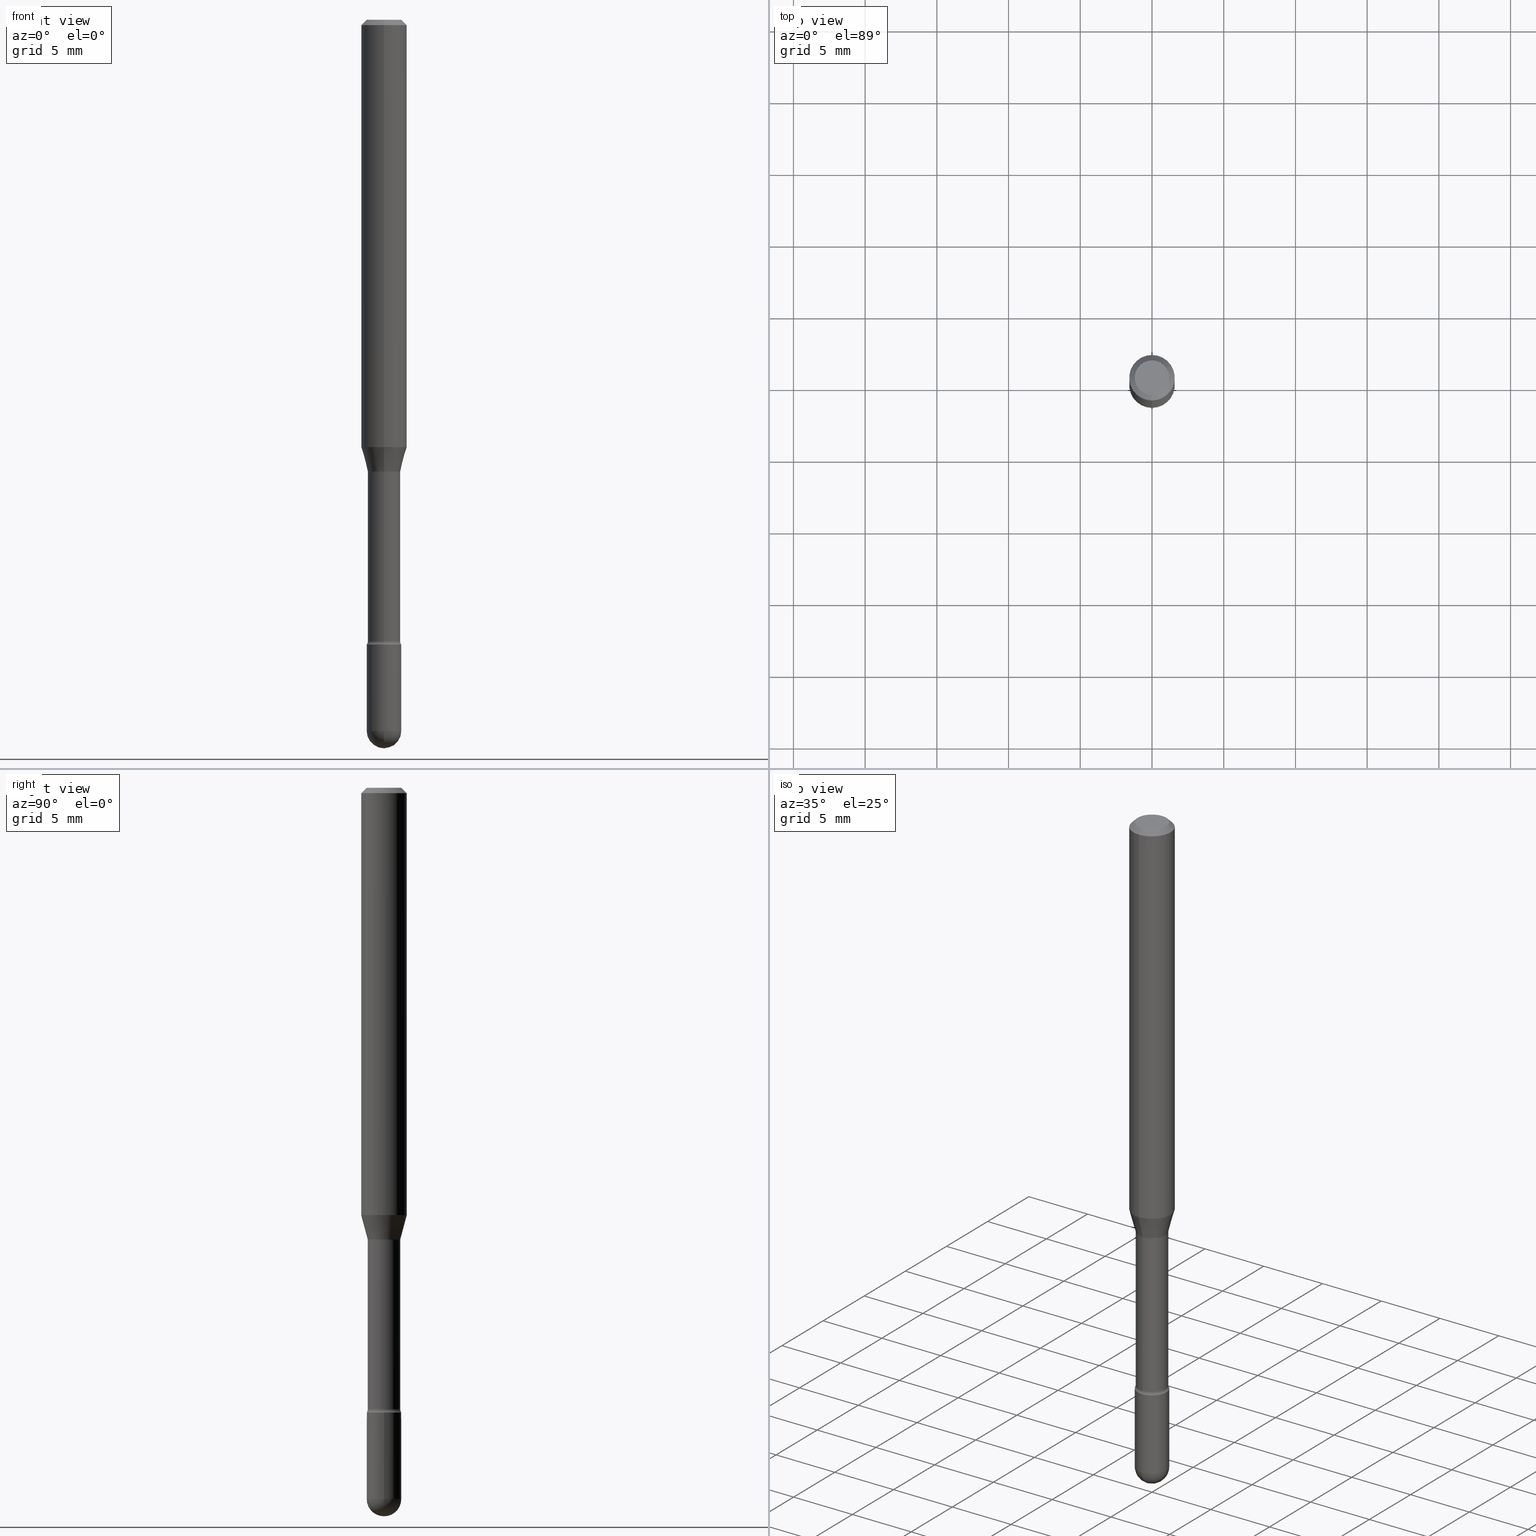
[diagram: canonical four-view strip — front | top / right | iso, engineering-drawing reading convention]
A machine part, canonical four-view strip (front | top / right | iso — engineering-drawing reading convention). The complete STEP part file that produces these views, byte-faithful:
ISO-10303-21;
HEADER;
FILE_DESCRIPTION (( 'STEP AP203' ),
    '1' );
FILE_NAME ('04560.STEP',
    '2024-04-09T21:55:51',
    ( '' ),
    ( '' ),
    'SwSTEP 2.0',
    'SolidWorks 2023',
    '' );
FILE_SCHEMA (( 'CONFIG_CONTROL_DESIGN' ));
ENDSEC;

DATA;
#1 = EDGE_CURVE ( 'NONE', #466, #296, #270, .T. ) ;
#2 = FACE_OUTER_BOUND ( 'NONE', #243, .T. ) ;
#3 = CARTESIAN_POINT ( 'NONE',  ( 4.364351673553919652E-16, 0.06249999999999995143, -0.01500000000000030129 ) ) ;
#4 = MECHANICAL_CONTEXT ( 'NONE', #531, 'mechanical' ) ;
#5 = AXIS2_PLACEMENT_3D ( 'NONE', #99, #60, #403 ) ;
#6 = LOCAL_TIME ( 17, 55, 51.00000000000000000, #93 ) ;
#7 = CARTESIAN_POINT ( 'NONE',  ( 3.027687393980253686E-29, -4.322818679396876931E-15, -1.238092501787273036 ) ) ;
#8 = ORIENTED_EDGE ( 'NONE', *, *, #321, .T. ) ;
#9 = CARTESIAN_POINT ( 'NONE',  ( 3.273825655015081526E-16, 0.04464999999999410413, -1.706203551853163081 ) ) ;
#10 = ORIENTED_EDGE ( 'NONE', *, *, #204, .T. ) ;
#11 = ORIENTED_EDGE ( 'NONE', *, *, #89, .T. ) ;
#12 = ADVANCED_FACE ( 'NONE', ( #2 ), #236, .T. ) ;
#13 = CC_DESIGN_PERSON_AND_ORGANIZATION_ASSIGNMENT ( #22, #233, ( #184 ) ) ;
#14 = ORIENTED_EDGE ( 'NONE', *, *, #446, .F. ) ;
#15 = AXIS2_PLACEMENT_3D ( 'NONE', #172, #38, #78 ) ;
#16 = CARTESIAN_POINT ( 'NONE',  ( 4.774777844076478914E-29, -6.817117314091241226E-15, -1.952499999999999902 ) ) ;
#17 = CIRCLE ( 'NONE', #462, 0.04749999999999999362 ) ;
#18 = DIRECTION ( 'NONE',  ( 2.445445222880823255E-29, -3.491515111477200891E-15, -1.000000000000000000 ) ) ;
#19 = ORIENTED_EDGE ( 'NONE', *, *, #258, .T. ) ;
#20 = EDGE_CURVE ( 'NONE', #498, #456, #229, .T. ) ;
#21 = EDGE_CURVE ( 'NONE', #237, #197, #24, .T. ) ;
#22 = PERSON_AND_ORGANIZATION ( #350, #383 ) ;
#23 = VERTEX_POINT ( 'NONE', #542 ) ;
#24 = CIRCLE ( 'NONE', #535, 0.04749999999999999362 ) ;
#25 = ADVANCED_FACE ( 'NONE', ( #490 ), #543, .T. ) ;
#26 = CARTESIAN_POINT ( 'NONE',  ( 3.027687393980253686E-29, -4.322818679396876931E-15, -1.238092501787273036 ) ) ;
#27 = FACE_OUTER_BOUND ( 'NONE', #28, .T. ) ;
#28 = EDGE_LOOP ( 'NONE', ( #274, #242, #120, #148 ) ) ;
#29 = CARTESIAN_POINT ( 'NONE',  ( -3.117892835586504621E-16, -0.04465000000000601821, -1.706203551853162415 ) ) ;
#30 = CC_DESIGN_PERSON_AND_ORGANIZATION_ASSIGNMENT ( #192, #445, ( #496 ) ) ;
#31 = VERTEX_POINT ( 'NONE', #276 ) ;
#32 = LINE ( 'NONE', #380, #477 ) ;
#33 = AXIS2_PLACEMENT_3D ( 'NONE', #556, #257, #169 ) ;
#34 = AXIS2_PLACEMENT_3D ( 'NONE', #227, #179, #230 ) ;
#35 = ORIENTED_EDGE ( 'NONE', *, *, #174, .F. ) ;
#36 = CARTESIAN_POINT ( 'NONE',  ( 0.04749999999999999362, -6.319581223306092199E-15, -1.715000000000000080 ) ) ;
#37 = PRODUCT_DEFINITION_SHAPE ( 'NONE', 'NONE',  #48 ) ;
#38 = DIRECTION ( 'NONE',  ( -2.445445222880823255E-29, 3.491515111477200891E-15, 1.000000000000000000 ) ) ;
#39 = EDGE_LOOP ( 'NONE', ( #62, #146, #338, #65 ) ) ;
#40 = DIRECTION ( 'NONE',  ( -6.982962677686266711E-15, -1.000000000000000000, 6.049115790211160649E-15 ) ) ;
#41 = CARTESIAN_POINT ( 'NONE',  ( 0.000000000000000000, 0.000000000000000000, 0.000000000000000000 ) ) ;
#42 = AXIS2_PLACEMENT_3D ( 'NONE', #460, #378, #250 ) ;
#43 = CC_DESIGN_APPROVAL ( #414, ( #48 ) ) ;
#44 = ORIENTED_EDGE ( 'NONE', *, *, #467, .F. ) ;
#45 = CARTESIAN_POINT ( 'NONE',  ( 4.440892098500914096E-16, 0.06249999999999593381, -1.173382893084895962 ) ) ;
#46 = CARTESIAN_POINT ( 'NONE',  ( 3.824891074290529484E-16, 0.04516111260565967150, -1.238092501787273259 ) ) ;
#47 = FACE_OUTER_BOUND ( 'NONE', #162, .T. ) ;
#48 = PRODUCT_DEFINITION ( 'UNKNOWN', '', #184, #566 ) ;
#49 = CIRCLE ( 'NONE', #15, 0.04749999999999999362 ) ;
#50 = CONICAL_SURFACE ( 'NONE', #348, 0.04516111260566398750, 0.2617993877991501850 ) ;
#51 = ORIENTED_EDGE ( 'NONE', *, *, #292, .F. ) ;
#52 = DIRECTION ( 'NONE',  ( -2.445445222880823255E-29, 3.491515111477200891E-15, 1.000000000000000000 ) ) ;
#53 = DIRECTION ( 'NONE',  ( 1.000000000000000000, -6.982962677686260400E-15, 0.000000000000000000 ) ) ;
#54 = CARTESIAN_POINT ( 'NONE',  ( 3.037210600811164574E-29, -4.336331793743577757E-15, -1.241974787463810959 ) ) ;
#55 = ORIENTED_EDGE ( 'NONE', *, *, #228, .T. ) ;
#56 = DIRECTION ( 'NONE',  ( -1.807323732225329350E-15, -0.2588190451025180194, 0.9659258262890689783 ) ) ;
#57 = AXIS2_PLACEMENT_3D ( 'NONE', #429, #343, #513 ) ;
#58 = CIRCLE ( 'NONE', #193, 0.06250000000000000000 ) ;
#59 = ADVANCED_FACE ( 'NONE', ( #234 ), #435, .F. ) ;
#60 = DIRECTION ( 'NONE',  ( -2.445445222880823255E-29, 3.491515111477200891E-15, 1.000000000000000000 ) ) ;
#61 = ORIENTED_EDGE ( 'NONE', *, *, #487, .F. ) ;
#62 = ORIENTED_EDGE ( 'NONE', *, *, #518, .F. ) ;
#63 = ORIENTED_EDGE ( 'NONE', *, *, #534, .T. ) ;
#64 = EDGE_CURVE ( 'NONE', #421, #244, #145, .T. ) ;
#65 = ORIENTED_EDGE ( 'NONE', *, *, #132, .T. ) ;
#66 = CIRCLE ( 'NONE', #545, 0.06250000000000000000 ) ;
#67 = LOCAL_TIME ( 17, 55, 51.00000000000000000, #269 ) ;
#68 = DIRECTION ( 'NONE',  ( -2.445445222880823255E-29, 3.491515111477200891E-15, 1.000000000000000000 ) ) ;
#69 = FACE_OUTER_BOUND ( 'NONE', #548, .T. ) ;
#70 = ORIENTED_EDGE ( 'NONE', *, *, #459, .F. ) ;
#71 = DIRECTION ( 'NONE',  ( -6.982962677686265922E-15, -1.000000000000000000, 3.491515111477200891E-15 ) ) ;
#72 = EDGE_LOOP ( 'NONE', ( #493, #533, #8, #51 ) ) ;
#73 = SPHERICAL_SURFACE ( 'NONE', #57, 0.04749999999999998668 ) ;
#74 = ORIENTED_EDGE ( 'NONE', *, *, #523, .F. ) ;
#75 = CARTESIAN_POINT ( 'NONE',  ( -3.153583638081081446E-16, -0.04516111260566831043, -1.238092501787272814 ) ) ;
#76 = AXIS2_PLACEMENT_3D ( 'NONE', #281, #106, #449 ) ;
#77 = APPROVAL_PERSON_ORGANIZATION ( #156, #109, #153 ) ;
#78 = DIRECTION ( 'NONE',  ( -6.982962677686266711E-15, -1.000000000000000000, 3.491515111477200891E-15 ) ) ;
#79 = PLANE ( 'NONE',  #105 ) ;
#80 = PERSON_AND_ORGANIZATION_ROLE ( 'creator' ) ;
#81 = DIRECTION ( 'NONE',  ( 1.000000000000000000, -6.982962677686260400E-15, 0.000000000000000000 ) ) ;
#82 = DATE_TIME_ROLE ( 'creation_date' ) ;
#83 = CLOSED_SHELL ( 'NONE', ( #387, #161, #424, #210, #101 ) ) ;
#84 = CIRCLE ( 'NONE', #340, 0.04749999999999998668 ) ;
#85 = DIRECTION ( 'NONE',  ( 1.000000000000000000, -7.105427357601001070E-15, 4.926315922137564471E-29 ) ) ;
#86 = CARTESIAN_POINT ( 'NONE',  ( 4.172427325141609199E-29, -5.957235484551391141E-15, -1.706203551853162859 ) ) ;
#87 = FACE_OUTER_BOUND ( 'NONE', #211, .T. ) ;
#88 = CARTESIAN_POINT ( 'NONE',  ( 0.000000000000000000, 0.000000000000000000, 0.000000000000000000 ) ) ;
#89 = EDGE_CURVE ( 'NONE', #466, #413, #186, .T. ) ;
#90 = AXIS2_PLACEMENT_3D ( 'NONE', #557, #298, #470 ) ;
#91 = LENGTH_MEASURE_WITH_UNIT ( LENGTH_MEASURE( 0.02539999999999999897 ), #355 );
#92 = VECTOR ( 'NONE', #436, 39.37007874015748143 ) ;
#93 = COORDINATED_UNIVERSAL_TIME_OFFSET ( 5, 0, .BEHIND. ) ;
#94 = DIRECTION ( 'NONE',  ( 1.839019923739599526E-15, 0.2588190451025248473, 0.9659258262890670910 ) ) ;
#95 = EDGE_LOOP ( 'NONE', ( #544, #539, #129, #322 ) ) ;
#96 = ORIENTED_EDGE ( 'NONE', *, *, #228, .F. ) ;
#97 = CARTESIAN_POINT ( 'NONE',  ( -1.169113584055446105E-44, 1.669184350826100908E-30, 4.780733988912460139E-16 ) ) ;
#98 = CARTESIAN_POINT ( 'NONE',  ( 4.774777844076478914E-29, -6.817117314091241226E-15, -1.952499999999999902 ) ) ;
#99 = CARTESIAN_POINT ( 'NONE',  ( 3.027687393980253686E-29, -4.322818679396876931E-15, -1.238092501787273036 ) ) ;
#100 = EDGE_LOOP ( 'NONE', ( #103, #336, #426, #14 ) ) ;
#101 = ADVANCED_FACE ( 'NONE', ( #318 ), #483, .T. ) ;
#102 = CIRCLE ( 'NONE', #42, 0.01500000000000001853 ) ;
#103 = ORIENTED_EDGE ( 'NONE', *, *, #326, .F. ) ;
#104 = ADVANCED_BREP_SHAPE_REPRESENTATION ( '04560', ( #139, #315, #320 ), #238 ) ;
#105 = AXIS2_PLACEMENT_3D ( 'NONE', #475, #314, #398 ) ;
#106 = DIRECTION ( 'NONE',  ( -2.445445222880823255E-29, 3.491515111477200891E-15, 1.000000000000000000 ) ) ;
#107 = EDGE_LOOP ( 'NONE', ( #458, #469, #149, #381 ) ) ;
#108 = APPROVAL_ROLE ( '' ) ;
#109 = APPROVAL ( #272, 'UNSPECIFIED' ) ;
#110 = ORIENTED_EDGE ( 'NONE', *, *, #508, .F. ) ;
#111 = CARTESIAN_POINT ( 'NONE',  ( 3.037210600811164574E-29, -4.336331793743577757E-15, -1.241974787463810959 ) ) ;
#112 = DIRECTION ( 'NONE',  ( -2.445445222880823255E-29, 3.491515111477200891E-15, 1.000000000000000000 ) ) ;
#113 = VERTEX_POINT ( 'NONE', #9 ) ;
#114 = ADVANCED_FACE ( 'NONE', ( #124 ), #335, .T. ) ;
#115 = VECTOR ( 'NONE', #431, 39.37007874015748143 ) ;
#116 = CARTESIAN_POINT ( 'NONE',  ( 0.04750000000000000749, -3.316907271900977082E-16, 2.316183968503069432E-30 ) ) ;
#117 = ORIENTED_EDGE ( 'NONE', *, *, #248, .T. ) ;
#118 = CARTESIAN_POINT ( 'NONE',  ( 3.840629472727447874E-16, 0.04749999999999999362, -2.485923956665947374E-16 ) ) ;
#119 = LINE ( 'NONE', #430, #505 ) ;
#120 = ORIENTED_EDGE ( 'NONE', *, *, #406, .F. ) ;
#121 = ADVANCED_FACE ( 'NONE', ( #385 ), #502, .F. ) ;
#122 = APPROVAL ( #541, 'UNSPECIFIED' ) ;
#123 = DIRECTION ( 'NONE',  ( -6.982962677686265922E-15, -1.000000000000000000, 3.483106191921935554E-15 ) ) ;
#124 = FACE_OUTER_BOUND ( 'NONE', #295, .T. ) ;
#125 = ORIENTED_EDGE ( 'NONE', *, *, #258, .F. ) ;
#126 = DIRECTION ( 'NONE',  ( -2.445468806185136597E-29, 3.491481338843145583E-15, 1.000000000000000000 ) ) ;
#127 = VECTOR ( 'NONE', #173, 39.37007874015748143 ) ;
#128 = LOCAL_TIME ( 17, 55, 51.00000000000000000, #485 ) ;
#129 = ORIENTED_EDGE ( 'NONE', *, *, #21, .T. ) ;
#130 = DIRECTION ( 'NONE',  ( 1.000000000000000000, -6.982962677686266711E-15, 4.876176775795934672E-29 ) ) ;
#131 = PERSON_AND_ORGANIZATION_ROLE ( 'design_owner' ) ;
#132 = EDGE_CURVE ( 'NONE', #196, #31, #157, .T. ) ;
#133 = CARTESIAN_POINT ( 'NONE',  ( 4.193938557240611908E-29, -5.987948416183399524E-15, -1.715000000000000080 ) ) ;
#134 = PERSON_AND_ORGANIZATION ( #350, #383 ) ;
#135 = CARTESIAN_POINT ( 'NONE',  ( -3.117892835586920252E-16, -0.04465000000000003688, 6.339695486187031816E-16 ) ) ;
#136 = VECTOR ( 'NONE', #94, 39.37007874015748143 ) ;
#137 = CIRCLE ( 'NONE', #525, 0.01500000000000001853 ) ;
#138 = DIRECTION ( 'NONE',  ( -2.445445222880823255E-29, 3.491515111477200891E-15, 1.000000000000000000 ) ) ;
#139 = MANIFOLD_SOLID_BREP ( 'Body-Move/Copy2[1]', #83 ) ;
#140 = DIRECTION ( 'NONE',  ( -2.445445222880823255E-29, 3.491515111477200891E-15, 1.000000000000000000 ) ) ;
#141 = DIRECTION ( 'NONE',  ( -2.445445222880823255E-29, 3.491515111477200891E-15, 1.000000000000000000 ) ) ;
#142 = ORIENTED_EDGE ( 'NONE', *, *, #292, .T. ) ;
#143 = DIRECTION ( 'NONE',  ( 1.000000000000000000, -6.982962677686265922E-15, 4.883557194083112340E-29 ) ) ;
#144 = SHAPE_DEFINITION_REPRESENTATION ( #37, #104 ) ;
#145 = CIRCLE ( 'NONE', #5, 0.04516111260566398750 ) ;
#146 = ORIENTED_EDGE ( 'NONE', *, *, #370, .F. ) ;
#147 = AXIS2_PLACEMENT_3D ( 'NONE', #437, #395, #130 ) ;
#148 = ORIENTED_EDGE ( 'NONE', *, *, #263, .F. ) ;
#149 = ORIENTED_EDGE ( 'NONE', *, *, #334, .F. ) ;
#150 = DATE_AND_TIME ( #443, #6 ) ;
#151 = ADVANCED_FACE ( 'NONE', ( #69 ), #552, .T. ) ;
#152 = ORIENTED_EDGE ( 'NONE', *, *, #534, .F. ) ;
#153 = APPROVAL_ROLE ( '' ) ;
#154 = ORIENTED_EDGE ( 'NONE', *, *, #174, .T. ) ;
#155 = EDGE_CURVE ( 'NONE', #546, #286, #392, .T. ) ;
#156 = PERSON_AND_ORGANIZATION ( #350, #383 ) ;
#157 = CIRCLE ( 'NONE', #312, 0.04465000000000000913 ) ;
#158 = CC_DESIGN_SECURITY_CLASSIFICATION ( #496, ( #184 ) ) ;
#159 = CC_DESIGN_PERSON_AND_ORGANIZATION_ASSIGNMENT ( #134, #131, ( #346 ) ) ;
#160 = DIRECTION ( 'NONE',  ( -2.445468806185136877E-29, 3.491481338843145188E-15, 1.000000000000000000 ) ) ;
#161 = ADVANCED_FACE ( 'NONE', ( #27 ), #294, .T. ) ;
#162 = EDGE_LOOP ( 'NONE', ( #61, #503 ) ) ;
#163 = DIRECTION ( 'NONE',  ( 1.000000000000000000, -6.982962677686261977E-15, 0.000000000000000000 ) ) ;
#164 = ORIENTED_EDGE ( 'NONE', *, *, #487, .T. ) ;
#165 = AXIS2_PLACEMENT_3D ( 'NONE', #504, #422, #249 ) ;
#166 = AXIS2_PLACEMENT_3D ( 'NONE', #351, #262, #81 ) ;
#167 = CARTESIAN_POINT ( 'NONE',  ( 4.193979002607509757E-29, -5.987890496115994688E-15, -1.715000000000000080 ) ) ;
#168 = CARTESIAN_POINT ( 'NONE',  ( 4.193979002607509757E-29, -5.987890496115994688E-15, -1.715000000000000080 ) ) ;
#169 = DIRECTION ( 'NONE',  ( -7.105427357601001070E-15, -1.000000000000000000, 0.000000000000000000 ) ) ;
#170 = DIRECTION ( 'NONE',  ( -2.445468806185136597E-29, 3.491481338843145583E-15, 1.000000000000000000 ) ) ;
#171 = ORIENTED_EDGE ( 'NONE', *, *, #446, .T. ) ;
#172 = CARTESIAN_POINT ( 'NONE',  ( 2.023381367529623564E-45, -2.889230576166888365E-31, -8.274542787142769853E-17 ) ) ;
#173 = DIRECTION ( 'NONE',  ( -4.851104656540964275E-15, -0.7071067811865500152, -0.7071067811865450192 ) ) ;
#174 = EDGE_CURVE ( 'NONE', #244, #296, #119, .T. ) ;
#175 = FACE_OUTER_BOUND ( 'NONE', #410, .T. ) ;
#176 = CIRCLE ( 'NONE', #183, 0.01499999999999999424 ) ;
#177 = AXIS2_PLACEMENT_3D ( 'NONE', #182, #389, #521 ) ;
#178 = CARTESIAN_POINT ( 'NONE',  ( 4.193938557240611908E-29, -5.987948416183399524E-15, -1.715000000000000080 ) ) ;
#179 = DIRECTION ( 'NONE',  ( -2.445445222880823255E-29, 3.491515111477200891E-15, 1.000000000000000000 ) ) ;
#180 = CC_DESIGN_PERSON_AND_ORGANIZATION_ASSIGNMENT ( #280, #447, ( #184 ) ) ;
#181 = DIRECTION ( 'NONE',  ( -6.982962677686265922E-15, -1.000000000000000000, 3.483106191921935554E-15 ) ) ;
#182 = CARTESIAN_POINT ( 'NONE',  ( 2.023381367529623564E-45, -2.889230576166888365E-31, -8.274542787142769853E-17 ) ) ;
#183 = AXIS2_PLACEMENT_3D ( 'NONE', #301, #468, #337 ) ;
#184 = PRODUCT_DEFINITION_FORMATION_WITH_SPECIFIED_SOURCE ( 'ANY', '', #346, .NOT_KNOWN. ) ;
#185 = DIRECTION ( 'NONE',  ( -6.982962677686265922E-15, -1.000000000000000000, 3.491515111477200891E-15 ) ) ;
#186 = LINE ( 'NONE', #532, #461 ) ;
#187 = ORIENTED_EDGE ( 'NONE', *, *, #1, .F. ) ;
#188 = DIRECTION ( 'NONE',  ( 1.000000000000000000, -6.982962677686266711E-15, 4.876176775795934672E-29 ) ) ;
#189 =( CONVERSION_BASED_UNIT ( 'INCH', #91 ) LENGTH_UNIT ( ) NAMED_UNIT ( #268 ) );
#190 = ORIENTED_EDGE ( 'NONE', *, *, #406, .T. ) ;
#191 = EDGE_CURVE ( 'NONE', #421, #466, #486, .T. ) ;
#192 = PERSON_AND_ORGANIZATION ( #350, #383 ) ;
#193 = AXIS2_PLACEMENT_3D ( 'NONE', #266, #530, #181 ) ;
#194 = VERTEX_POINT ( 'NONE', #273 ) ;
#195 = DIRECTION ( 'NONE',  ( 6.982962677686265922E-15, 1.000000000000000000, -3.483106191921935554E-15 ) ) ;
#196 = VERTEX_POINT ( 'NONE', #405 ) ;
#197 = VERTEX_POINT ( 'NONE', #489 ) ;
#198 = DIRECTION ( 'NONE',  ( -6.982962677686265922E-15, -1.000000000000000000, 3.491515111477200891E-15 ) ) ;
#199 = EDGE_LOOP ( 'NONE', ( #200, #190, #10, #323, #374 ) ) ;
#200 = ORIENTED_EDGE ( 'NONE', *, *, #524, .F. ) ;
#201 = SECURITY_CLASSIFICATION_LEVEL ( 'unclassified' ) ;
#202 = ORIENTED_EDGE ( 'NONE', *, *, #379, .F. ) ;
#203 = TOROIDAL_SURFACE ( 'NONE', #271, 0.05965000000000000163, 0.01500000000000001853 ) ;
#204 = EDGE_CURVE ( 'NONE', #507, #252, #471, .T. ) ;
#205 = DIRECTION ( 'NONE',  ( 6.982962677686265922E-15, 1.000000000000000000, -5.751258934030028949E-15 ) ) ;
#206 = ORIENTED_EDGE ( 'NONE', *, *, #191, .T. ) ;
#207 = CARTESIAN_POINT ( 'NONE',  ( 3.375077994860895005E-16, 0.04749999999999401923, -1.715000000000000524 ) ) ;
#208 = CARTESIAN_POINT ( 'NONE',  ( -1.169113584055446105E-44, 1.669184350826100908E-30, 4.780733988912460139E-16 ) ) ;
#209 = ADVANCED_FACE ( 'NONE', ( #408 ), #407, .T. ) ;
#210 = ADVANCED_FACE ( 'NONE', ( #325 ), #73, .T. ) ;
#211 = EDGE_LOOP ( 'NONE', ( #19, #450 ) ) ;
#212 = VECTOR ( 'NONE', #160, 39.37007874015748143 ) ;
#213 = AXIS2_PLACEMENT_3D ( 'NONE', #240, #18, #195 ) ;
#214 = CIRCLE ( 'NONE', #416, 0.04516111260566398750 ) ;
#215 = DIRECTION ( 'NONE',  ( -2.445445222880823255E-29, 3.491515111477200891E-15, 1.000000000000000000 ) ) ;
#216 = VERTEX_POINT ( 'NONE', #29 ) ;
#217 = CARTESIAN_POINT ( 'NONE',  ( -4.364351673553627281E-16, -0.06250000000000405231, -1.173382893084895295 ) ) ;
#218 = CC_DESIGN_DATE_AND_TIME_ASSIGNMENT ( #476, #82, ( #48 ) ) ;
#219 = FACE_OUTER_BOUND ( 'NONE', #283, .T. ) ;
#220 = APPROVAL_STATUS ( 'not_yet_approved' ) ;
#221 = ORIENTED_EDGE ( 'NONE', *, *, #263, .T. ) ;
#222 = LINE ( 'NONE', #3, #92 ) ;
#223 = AXIS2_PLACEMENT_3D ( 'NONE', #168, #170, #342 ) ;
#224 = VECTOR ( 'NONE', #526, 39.37007874015748143 ) ;
#225 = CALENDAR_DATE ( 2024, 9, 4 ) ;
#226 = CARTESIAN_POINT ( 'NONE',  ( -3.773273898774340269E-16, -0.04749999999999999362, 8.310153992373932802E-17 ) ) ;
#227 = CARTESIAN_POINT ( 'NONE',  ( 2.869443590504537557E-29, -4.096884102754750081E-15, -1.173382893084895739 ) ) ;
#228 = EDGE_CURVE ( 'NONE', #113, #31, #32, .T. ) ;
#229 = LINE ( 'NONE', #563, #127 ) ;
#230 = DIRECTION ( 'NONE',  ( -6.982962677686265922E-15, -1.000000000000000000, 4.370956789862821150E-15 ) ) ;
#231 = DIRECTION ( 'NONE',  ( -1.000000000000000000, 6.982962677686265922E-15, -4.883557194083112340E-29 ) ) ;
#232 = CIRCLE ( 'NONE', #245, 0.04750000000000000749 ) ;
#233 = PERSON_AND_ORGANIZATION_ROLE ( 'creator' ) ;
#234 = FACE_OUTER_BOUND ( 'NONE', #39, .T. ) ;
#235 = APPROVAL_DATE_TIME ( #328, #109 ) ;
#236 = CONICAL_SURFACE ( 'NONE', #253, 0.06250000000000000000, 0.7853981633974483900 ) ;
#237 = VERTEX_POINT ( 'NONE', #207 ) ;
#238 =( GEOMETRIC_REPRESENTATION_CONTEXT ( 3 ) GLOBAL_UNCERTAINTY_ASSIGNED_CONTEXT ( ( #560 ) ) GLOBAL_UNIT_ASSIGNED_CONTEXT ( ( #189, #438, #260 ) ) REPRESENTATION_CONTEXT ( 'NONE', 'WORKASPACE' ) );
#239 = PLANE ( 'NONE',  #484 ) ;
#240 = CARTESIAN_POINT ( 'NONE',  ( 3.668167834321254886E-31, -5.237272667215830031E-17, -0.01500000000000008271 ) ) ;
#241 = APPLICATION_CONTEXT ( 'configuration controlled 3d designs of mechanical parts and assemblies' ) ;
#242 = ORIENTED_EDGE ( 'NONE', *, *, #352, .T. ) ;
#243 = EDGE_LOOP ( 'NONE', ( #537, #70, #171, #142 ) ) ;
#244 = VERTEX_POINT ( 'NONE', #75 ) ;
#245 = AXIS2_PLACEMENT_3D ( 'NONE', #284, #515, #333 ) ;
#246 = DIRECTION ( 'NONE',  ( -2.445445222880823255E-29, 3.491515111477200891E-15, 1.000000000000000000 ) ) ;
#247 = DIRECTION ( 'NONE',  ( -2.445445222880823255E-29, 3.491515111477200891E-15, 1.000000000000000000 ) ) ;
#248 = EDGE_CURVE ( 'NONE', #216, #197, #176, .T. ) ;
#249 = DIRECTION ( 'NONE',  ( -6.982962677686265922E-15, -1.000000000000000000, 6.118360568117042054E-15 ) ) ;
#250 = DIRECTION ( 'NONE',  ( -6.982962677686267499E-15, -1.000000000000000000, 0.000000000000000000 ) ) ;
#251 = DIRECTION ( 'NONE',  ( -2.445445222880823255E-29, 3.491515111477200891E-15, 1.000000000000000000 ) ) ;
#252 = VERTEX_POINT ( 'NONE', #464 ) ;
#253 = AXIS2_PLACEMENT_3D ( 'NONE', #391, #529, #439 ) ;
#254 = CIRCLE ( 'NONE', #177, 0.04749999999999999362 ) ;
#255 = DIRECTION ( 'NONE',  ( -6.982962677686266711E-15, -1.000000000000000000, 6.049115790211160649E-15 ) ) ;
#256 = DIRECTION ( 'NONE',  ( -2.445445222880823255E-29, 3.491515111477200891E-15, 1.000000000000000000 ) ) ;
#257 = DIRECTION ( 'NONE',  ( -1.000000000000000000, 7.105427357601001070E-15, -4.926315508542082329E-29 ) ) ;
#258 = EDGE_CURVE ( 'NONE', #286, #546, #382, .T. ) ;
#259 = CARTESIAN_POINT ( 'NONE',  ( 4.172467563059193299E-29, -5.957177861563210606E-15, -1.706203551853162859 ) ) ;
#260 =( NAMED_UNIT ( * ) SI_UNIT ( $, .STERADIAN. ) SOLID_ANGLE_UNIT ( ) );
#261 = DIRECTION ( 'NONE',  ( -6.982962677686266711E-15, -1.000000000000000000, 5.751258934030028949E-15 ) ) ;
#262 = DIRECTION ( 'NONE',  ( -2.445468806185136597E-29, 3.491481338843145583E-15, 1.000000000000000000 ) ) ;
#263 = EDGE_CURVE ( 'NONE', #194, #23, #232, .T. ) ;
#264 = DIRECTION ( 'NONE',  ( -6.982962677686265922E-15, -1.000000000000000000, 6.118360568117042054E-15 ) ) ;
#265 = DIRECTION ( 'NONE',  ( -6.982962677686265922E-15, -1.000000000000000000, 4.370956789862821150E-15 ) ) ;
#266 = CARTESIAN_POINT ( 'NONE',  ( 3.668167834321254886E-31, -5.237272667215830031E-17, -0.01500000000000008271 ) ) ;
#267 = CARTESIAN_POINT ( 'NONE',  ( -3.375077994859997675E-16, -0.04750000000000682149, -1.952499999999999680 ) ) ;
#268 = DIMENSIONAL_EXPONENTS ( 1.000000000000000000, 0.000000000000000000, 0.000000000000000000, 0.000000000000000000, 0.000000000000000000, 0.000000000000000000, 0.000000000000000000 ) ;
#269 = COORDINATED_UNIVERSAL_TIME_OFFSET ( 5, 0, .BEHIND. ) ;
#270 = CIRCLE ( 'NONE', #288, 0.06250000000000000000 ) ;
#271 = AXIS2_PLACEMENT_3D ( 'NONE', #111, #246, #419 ) ;
#272 = APPROVAL_STATUS ( 'not_yet_approved' ) ;
#273 = CARTESIAN_POINT ( 'NONE',  ( 3.316907271901453357E-16, 0.04749999999999317268, -1.952500000000000346 ) ) ;
#274 = ORIENTED_EDGE ( 'NONE', *, *, #561, .F. ) ;
#275 = PERSON_AND_ORGANIZATION ( #350, #383 ) ;
#276 = CARTESIAN_POINT ( 'NONE',  ( 3.172573315169266568E-16, 0.04464999999999567232, -1.241974787463811181 ) ) ;
#277 = CIRCLE ( 'NONE', #165, 0.04465000000000006464 ) ;
#278 = CC_DESIGN_APPROVAL ( #109, ( #184 ) ) ;
#279 = LOCAL_TIME ( 17, 55, 51.00000000000000000, #412 ) ;
#280 = PERSON_AND_ORGANIZATION ( #350, #383 ) ;
#281 = CARTESIAN_POINT ( 'NONE',  ( -1.169113584055446105E-44, 1.669184350826100908E-30, 4.780733988912460139E-16 ) ) ;
#282 = ORIENTED_EDGE ( 'NONE', *, *, #287, .T. ) ;
#283 = EDGE_LOOP ( 'NONE', ( #417, #512, #63, #344 ) ) ;
#284 = CARTESIAN_POINT ( 'NONE',  ( 4.774777844076478914E-29, -6.817117314091241226E-15, -1.952499999999999902 ) ) ;
#285 = DIRECTION ( 'NONE',  ( -6.982962677686265922E-15, -1.000000000000000000, 6.118360568117049942E-15 ) ) ;
#286 = VERTEX_POINT ( 'NONE', #36 ) ;
#287 = EDGE_CURVE ( 'NONE', #113, #216, #277, .T. ) ;
#288 = AXIS2_PLACEMENT_3D ( 'NONE', #360, #306, #265 ) ;
#289 = AXIS2_PLACEMENT_3D ( 'NONE', #97, #327, #499 ) ;
#290 = FACE_OUTER_BOUND ( 'NONE', #554, .T. ) ;
#291 = ORIENTED_EDGE ( 'NONE', *, *, #191, .F. ) ;
#292 = EDGE_CURVE ( 'NONE', #413, #456, #66, .T. ) ;
#293 = DIRECTION ( 'NONE',  ( -2.445445222880823255E-29, 3.491515111477200891E-15, 1.000000000000000000 ) ) ;
#294 = SPHERICAL_SURFACE ( 'NONE', #399, 0.04749999999999998668 ) ;
#295 = EDGE_LOOP ( 'NONE', ( #411, #11, #44, #386 ) ) ;
#296 = VERTEX_POINT ( 'NONE', #217 ) ;
#297 = DIRECTION ( 'NONE',  ( -2.445468806185136597E-29, 3.491481338843145583E-15, 1.000000000000000000 ) ) ;
#298 = DIRECTION ( 'NONE',  ( 2.445445222880822694E-29, -3.491515111477200891E-15, -1.000000000000000000 ) ) ;
#299 = AXIS2_PLACEMENT_3D ( 'NONE', #208, #251, #425 ) ;
#300 = AXIS2_PLACEMENT_3D ( 'NONE', #86, #442, #264 ) ;
#301 = CARTESIAN_POINT ( 'NONE',  ( -4.165337237239444233E-16, -0.05965000000000601765, -1.706203551853162415 ) ) ;
#302 = EDGE_CURVE ( 'NONE', #244, #196, #102, .T. ) ;
#303 = EDGE_LOOP ( 'NONE', ( #558, #404 ) ) ;
#304 = CARTESIAN_POINT ( 'NONE',  ( -0.04750000000000000749, 3.375077994860476415E-16, -2.336494167871080260E-30 ) ) ;
#305 = APPLICATION_PROTOCOL_DEFINITION ( 'international standard', 'config_control_design', 1994, #531 ) ;
#306 = DIRECTION ( 'NONE',  ( -2.445445222880823255E-29, 3.491515111477200891E-15, 1.000000000000000000 ) ) ;
#307 = CARTESIAN_POINT ( 'NONE',  ( 4.440892098500914096E-16, 0.06249999999999995143, -0.01500000000000030129 ) ) ;
#308 = APPROVAL_ROLE ( '' ) ;
#309 = ADVANCED_FACE ( 'NONE', ( #549 ), #452, .T. ) ;
#310 = EDGE_CURVE ( 'NONE', #252, #286, #547, .T. ) ;
#311 = DIRECTION ( 'NONE',  ( -2.445468806185136877E-29, 3.491481338843145188E-15, 1.000000000000000000 ) ) ;
#312 = AXIS2_PLACEMENT_3D ( 'NONE', #465, #112, #285 ) ;
#313 = CIRCLE ( 'NONE', #34, 0.06250000000000000000 ) ;
#314 = DIRECTION ( 'NONE',  ( -2.438088387897960049E-29, 3.491481338843145188E-15, 1.000000000000000000 ) ) ;
#315 = MANIFOLD_SOLID_BREP ( 'Body-Move/Copy2[2]', #347 ) ;
#316 = CARTESIAN_POINT ( 'NONE',  ( 4.238387418809418286E-16, 0.05964999999999409663, -1.706203551853163081 ) ) ;
#317 = CC_DESIGN_PERSON_AND_ORGANIZATION_ASSIGNMENT ( #528, #80, ( #48 ) ) ;
#318 = FACE_OUTER_BOUND ( 'NONE', #199, .T. ) ;
#319 = APPROVAL_DATE_TIME ( #150, #122 ) ;
#320 = AXIS2_PLACEMENT_3D ( 'NONE', #41, #363, #520 ) ;
#321 = EDGE_CURVE ( 'NONE', #296, #456, #423, .T. ) ;
#322 = ORIENTED_EDGE ( 'NONE', *, *, #248, .F. ) ;
#323 = ORIENTED_EDGE ( 'NONE', *, *, #310, .T. ) ;
#324 = CARTESIAN_POINT ( 'NONE',  ( 3.316907271901395178E-16, 0.04749999999999401229, -1.715000000000000524 ) ) ;
#325 = FACE_OUTER_BOUND ( 'NONE', #107, .T. ) ;
#326 = EDGE_CURVE ( 'NONE', #498, #367, #49, .T. ) ;
#327 = DIRECTION ( 'NONE',  ( -2.445445222880823255E-29, 3.491515111477200891E-15, 1.000000000000000000 ) ) ;
#328 = DATE_AND_TIME ( #373, #279 ) ;
#329 = CIRCLE ( 'NONE', #300, 0.04465000000000006464 ) ;
#330 = ORIENTED_EDGE ( 'NONE', *, *, #379, .T. ) ;
#331 = DIRECTION ( 'NONE',  ( -2.445445222880822694E-29, 3.491515111477200891E-15, 1.000000000000000000 ) ) ;
#332 = DATE_AND_TIME ( #495, #128 ) ;
#333 = DIRECTION ( 'NONE',  ( 1.000000000000000000, -6.982962677686260400E-15, 0.000000000000000000 ) ) ;
#334 = EDGE_CURVE ( 'NONE', #252, #194, #339, .T. ) ;
#335 = CYLINDRICAL_SURFACE ( 'NONE', #299, 0.06250000000000000000 ) ;
#336 = ORIENTED_EDGE ( 'NONE', *, *, #20, .T. ) ;
#337 = DIRECTION ( 'NONE',  ( -6.982962677686266711E-15, -1.000000000000000000, 0.000000000000000000 ) ) ;
#338 = ORIENTED_EDGE ( 'NONE', *, *, #302, .T. ) ;
#339 = CIRCLE ( 'NONE', #375, 0.04750000000000000749 ) ;
#340 = AXIS2_PLACEMENT_3D ( 'NONE', #16, #143, #368 ) ;
#341 = CARTESIAN_POINT ( 'NONE',  ( 3.027687393980253686E-29, -4.322818679396876931E-15, -1.238092501787273036 ) ) ;
#342 = DIRECTION ( 'NONE',  ( 1.000000000000000000, -6.982962677686261977E-15, 0.000000000000000000 ) ) ;
#343 = DIRECTION ( 'NONE',  ( -1.000000000000000000, 6.982962677686265922E-15, -4.883557194083112340E-29 ) ) ;
#344 = ORIENTED_EDGE ( 'NONE', *, *, #302, .F. ) ;
#345 = DIRECTION ( 'NONE',  ( 1.000000000000000000, -6.982962677686260400E-15, 0.000000000000000000 ) ) ;
#346 = PRODUCT ( '04560', '04560', '', ( #4 ) ) ;
#347 = CLOSED_SHELL ( 'NONE', ( #364, #25, #432, #209, #114, #309, #418, #555, #12, #121, #550, #361, #151, #59 ) ) ;
#348 = AXIS2_PLACEMENT_3D ( 'NONE', #7, #52, #40 ) ;
#349 = CARTESIAN_POINT ( 'NONE',  ( 4.892968632307074311E-29, -6.980054141538316174E-15, -2.000000000000000000 ) ) ;
#350 = PERSON ( 'UNSPECIFIED', 'UNSPECIFIED', 'UNSPECIFIED', ('UNSPECIFIED'), ('UNSPECIFIED'), ('UNSPECIFIED') ) ;
#351 = CARTESIAN_POINT ( 'NONE',  ( 4.774777844076478914E-29, -6.817117314091241226E-15, -1.952499999999999902 ) ) ;
#352 = EDGE_CURVE ( 'NONE', #509, #507, #522, .T. ) ;
#353 = ORIENTED_EDGE ( 'NONE', *, *, #523, .T. ) ;
#354 = DIRECTION ( 'NONE',  ( -6.982962677686266711E-15, -1.000000000000000000, 5.751258934030028949E-15 ) ) ;
#355 =( LENGTH_UNIT ( ) NAMED_UNIT ( * ) SI_UNIT ( $, .METRE. ) );
#356 = AXIS2_PLACEMENT_3D ( 'NONE', #88, #444, #188 ) ;
#357 = DIRECTION ( 'NONE',  ( 1.000000000000000000, -7.105427357601001070E-15, 4.926315922137564471E-29 ) ) ;
#358 = CIRCLE ( 'NONE', #166, 0.04750000000000000749 ) ;
#359 = APPROVAL_DATE_TIME ( #481, #414 ) ;
#360 = CARTESIAN_POINT ( 'NONE',  ( 2.869443590504537557E-29, -4.096884102754750081E-15, -1.173382893084895739 ) ) ;
#361 = ADVANCED_FACE ( 'NONE', ( #290 ), #494, .F. ) ;
#362 = CYLINDRICAL_SURFACE ( 'NONE', #147, 0.04750000000000000749 ) ;
#363 = DIRECTION ( 'NONE',  ( 0.000000000000000000, 0.000000000000000000, 1.000000000000000000 ) ) ;
#364 = ADVANCED_FACE ( 'NONE', ( #219 ), #203, .F. ) ;
#365 = AXIS2_PLACEMENT_3D ( 'NONE', #341, #472, #384 ) ;
#366 = APPROVAL_PERSON_ORGANIZATION ( #275, #122, #108 ) ;
#367 = VERTEX_POINT ( 'NONE', #118 ) ;
#368 = DIRECTION ( 'NONE',  ( 6.982962677686265133E-15, 1.000000000000000000, 0.000000000000000000 ) ) ;
#369 = CARTESIAN_POINT ( 'NONE',  ( 3.208890050080145858E-16, 0.04516111260565967150, -1.238092501787273259 ) ) ;
#370 = EDGE_CURVE ( 'NONE', #244, #421, #214, .T. ) ;
#371 = ORIENTED_EDGE ( 'NONE', *, *, #524, .T. ) ;
#372 = FACE_OUTER_BOUND ( 'NONE', #72, .T. ) ;
#373 = CALENDAR_DATE ( 2024, 9, 4 ) ;
#374 = ORIENTED_EDGE ( 'NONE', *, *, #155, .F. ) ;
#375 = AXIS2_PLACEMENT_3D ( 'NONE', #510, #297, #345 ) ;
#376 = TOROIDAL_SURFACE ( 'NONE', #478, 0.05965000000000005714, 0.01499999999999999771 ) ;
#377 = ORIENTED_EDGE ( 'NONE', *, *, #132, .F. ) ;
#378 = DIRECTION ( 'NONE',  ( -1.000000000000000000, 6.982962677686265922E-15, -4.883557194083112901E-29 ) ) ;
#379 = EDGE_CURVE ( 'NONE', #216, #113, #329, .T. ) ;
#380 = CARTESIAN_POINT ( 'NONE',  ( 3.172573315168849457E-16, 0.04465000000000003688, 3.221772491637888956E-16 ) ) ;
#381 = ORIENTED_EDGE ( 'NONE', *, *, #204, .F. ) ;
#382 = CIRCLE ( 'NONE', #564, 0.04749999999999999362 ) ;
#383 = ORGANIZATION ( 'UNSPECIFIED', 'UNSPECIFIED', '' ) ;
#384 = DIRECTION ( 'NONE',  ( -6.982962677686266711E-15, -1.000000000000000000, 6.049115790211160649E-15 ) ) ;
#385 = FACE_OUTER_BOUND ( 'NONE', #303, .T. ) ;
#386 = ORIENTED_EDGE ( 'NONE', *, *, #321, .F. ) ;
#387 = ADVANCED_FACE ( 'NONE', ( #565 ), #362, .T. ) ;
#388 = CARTESIAN_POINT ( 'NONE',  ( -4.364351673553916201E-16, -0.06250000000000000000, 6.962930933585711189E-16 ) ) ;
#389 = DIRECTION ( 'NONE',  ( -2.445445222880823255E-29, 3.491515111477200891E-15, 1.000000000000000000 ) ) ;
#390 = CALENDAR_DATE ( 2024, 9, 4 ) ;
#391 = CARTESIAN_POINT ( 'NONE',  ( 3.668167834321254886E-31, -5.237272667215830031E-17, -0.01500000000000008271 ) ) ;
#392 = CIRCLE ( 'NONE', #223, 0.04749999999999999362 ) ;
#393 = AXIS2_PLACEMENT_3D ( 'NONE', #440, #138, #480 ) ;
#394 = EDGE_CURVE ( 'NONE', #296, #466, #313, .T. ) ;
#395 = DIRECTION ( 'NONE',  ( -2.445468806185136597E-29, 3.491481338843145583E-15, 1.000000000000000000 ) ) ;
#396 = LINE ( 'NONE', #135, #224 ) ;
#397 = PRODUCT_RELATED_PRODUCT_CATEGORY ( 'detail', '', ( #346 ) ) ;
#398 = DIRECTION ( 'NONE',  ( 1.000000000000000000, -6.982962677686265922E-15, 4.876176775795935793E-29 ) ) ;
#399 = AXIS2_PLACEMENT_3D ( 'NONE', #527, #231, #205 ) ;
#400 = FACE_OUTER_BOUND ( 'NONE', #95, .T. ) ;
#401 = CC_DESIGN_APPROVAL ( #122, ( #496 ) ) ;
#402 = APPLICATION_PROTOCOL_DEFINITION ( 'international standard', 'config_control_design', 1994, #241 ) ;
#403 = DIRECTION ( 'NONE',  ( -6.982962677686266711E-15, -1.000000000000000000, 6.049115790211160649E-15 ) ) ;
#404 = ORIENTED_EDGE ( 'NONE', *, *, #326, .T. ) ;
#405 = CARTESIAN_POINT ( 'NONE',  ( -3.117892835586614568E-16, -0.04465000000000434593, -1.241974787463810737 ) ) ;
#406 = EDGE_CURVE ( 'NONE', #23, #507, #358, .T. ) ;
#407 = CONICAL_SURFACE ( 'NONE', #213, 0.06250000000000000000, 0.7853981633974483900 ) ;
#408 = FACE_OUTER_BOUND ( 'NONE', #100, .T. ) ;
#409 = CIRCLE ( 'NONE', #393, 0.04465000000000000913 ) ;
#410 = EDGE_LOOP ( 'NONE', ( #291, #451, #154, #187 ) ) ;
#411 = ORIENTED_EDGE ( 'NONE', *, *, #394, .T. ) ;
#412 = COORDINATED_UNIVERSAL_TIME_OFFSET ( 5, 0, .BEHIND. ) ;
#413 = VERTEX_POINT ( 'NONE', #307 ) ;
#414 = APPROVAL ( #220, 'UNSPECIFIED' ) ;
#415 = AXIS2_PLACEMENT_3D ( 'NONE', #54, #454, #497 ) ;
#416 = AXIS2_PLACEMENT_3D ( 'NONE', #26, #293, #255 ) ;
#417 = ORIENTED_EDGE ( 'NONE', *, *, #64, .F. ) ;
#418 = ADVANCED_FACE ( 'NONE', ( #175 ), #50, .T. ) ;
#419 = DIRECTION ( 'NONE',  ( -6.982962677686265922E-15, -1.000000000000000000, 3.491515111477200891E-15 ) ) ;
#420 = DIRECTION ( 'NONE',  ( -6.982962677686265922E-15, -1.000000000000000000, 3.491515111477200891E-15 ) ) ;
#421 = VERTEX_POINT ( 'NONE', #46 ) ;
#422 = DIRECTION ( 'NONE',  ( -2.445445222880823255E-29, 3.491515111477200891E-15, 1.000000000000000000 ) ) ;
#423 = LINE ( 'NONE', #388, #115 ) ;
#424 = ADVANCED_FACE ( 'NONE', ( #87 ), #79, .T. ) ;
#425 = DIRECTION ( 'NONE',  ( -6.982962677686265922E-15, -1.000000000000000000, 3.491515111477201285E-15 ) ) ;
#426 = ORIENTED_EDGE ( 'NONE', *, *, #467, .T. ) ;
#427 = AXIS2_PLACEMENT_3D ( 'NONE', #511, #247, #420 ) ;
#428 = APPROVAL_PERSON_ORGANIZATION ( #474, #414, #308 ) ;
#429 = CARTESIAN_POINT ( 'NONE',  ( 4.774777844076478914E-29, -6.817117314091241226E-15, -1.952499999999999902 ) ) ;
#430 = CARTESIAN_POINT ( 'NONE',  ( -3.153583638081081446E-16, -0.04516111260566831043, -1.238092501787272814 ) ) ;
#431 = DIRECTION ( 'NONE',  ( -2.445445222880823255E-29, 3.491515111477200891E-15, 1.000000000000000000 ) ) ;
#432 = ADVANCED_FACE ( 'NONE', ( #400 ), #376, .F. ) ;
#433 = CARTESIAN_POINT ( 'NONE',  ( -4.364351673553912750E-16, -0.06250000000000005551, -0.01499999999999986587 ) ) ;
#434 = COORDINATED_UNIVERSAL_TIME_OFFSET ( 5, 0, .BEHIND. ) ;
#435 = TOROIDAL_SURFACE ( 'NONE', #415, 0.05965000000000000163, 0.01500000000000001853 ) ;
#436 = DIRECTION ( 'NONE',  ( 4.937700262164548042E-15, 0.7071067811865451302, -0.7071067811865499042 ) ) ;
#437 = CARTESIAN_POINT ( 'NONE',  ( 0.000000000000000000, 0.000000000000000000, 0.000000000000000000 ) ) ;
#438 =( NAMED_UNIT ( * ) PLANE_ANGLE_UNIT ( ) SI_UNIT ( $, .RADIAN. ) );
#439 = DIRECTION ( 'NONE',  ( 6.982962677686265922E-15, 1.000000000000000000, -3.483106191921935554E-15 ) ) ;
#440 = CARTESIAN_POINT ( 'NONE',  ( 3.037181310941802135E-29, -4.336373738503580574E-15, -1.241974787463810959 ) ) ;
#441 = AXIS2_PLACEMENT_3D ( 'NONE', #501, #68, #71 ) ;
#442 = DIRECTION ( 'NONE',  ( -2.445445222880823255E-29, 3.491515111477200891E-15, 1.000000000000000000 ) ) ;
#443 = CALENDAR_DATE ( 2024, 9, 4 ) ;
#444 = DIRECTION ( 'NONE',  ( -2.445468806185136597E-29, 3.491481338843145583E-15, 1.000000000000000000 ) ) ;
#445 = PERSON_AND_ORGANIZATION_ROLE ( 'classification_officer' ) ;
#446 = EDGE_CURVE ( 'NONE', #367, #413, #222, .T. ) ;
#447 = PERSON_AND_ORGANIZATION_ROLE ( 'design_supplier' ) ;
#448 = DIRECTION ( 'NONE',  ( -2.445468806185136597E-29, 3.491481338843145583E-15, 1.000000000000000000 ) ) ;
#449 = DIRECTION ( 'NONE',  ( -6.982962677686265922E-15, -1.000000000000000000, 3.491515111477200891E-15 ) ) ;
#450 = ORIENTED_EDGE ( 'NONE', *, *, #155, .T. ) ;
#451 = ORIENTED_EDGE ( 'NONE', *, *, #64, .T. ) ;
#452 = CONICAL_SURFACE ( 'NONE', #365, 0.04516111260566398750, 0.2617993877991501850 ) ;
#453 = AXIS2_PLACEMENT_3D ( 'NONE', #98, #448, #53 ) ;
#454 = DIRECTION ( 'NONE',  ( -2.445445222880823255E-29, 3.491515111477200891E-15, 1.000000000000000000 ) ) ;
#455 = EDGE_LOOP ( 'NONE', ( #330, #55, #377, #74 ) ) ;
#456 = VERTEX_POINT ( 'NONE', #433 ) ;
#457 = ORIENTED_EDGE ( 'NONE', *, *, #334, .T. ) ;
#458 = ORIENTED_EDGE ( 'NONE', *, *, #352, .F. ) ;
#459 = EDGE_CURVE ( 'NONE', #367, #498, #254, .T. ) ;
#460 = CARTESIAN_POINT ( 'NONE',  ( -4.165337237239554180E-16, -0.05965000000000433844, -1.241974787463810737 ) ) ;
#461 = VECTOR ( 'NONE', #141, 39.37007874015748143 ) ;
#462 = AXIS2_PLACEMENT_3D ( 'NONE', #133, #140, #354 ) ;
#463 = EDGE_LOOP ( 'NONE', ( #221, #371, #125, #514, #457 ) ) ;
#464 = CARTESIAN_POINT ( 'NONE',  ( 0.04750000000000000749, -6.734194632293715468E-15, -1.952499999999999902 ) ) ;
#465 = CARTESIAN_POINT ( 'NONE',  ( 3.037181310941802135E-29, -4.336373738503580574E-15, -1.241974787463810959 ) ) ;
#466 = VERTEX_POINT ( 'NONE', #45 ) ;
#467 = EDGE_CURVE ( 'NONE', #456, #413, #58, .T. ) ;
#468 = DIRECTION ( 'NONE',  ( -1.000000000000000000, 6.982962677686265922E-15, -4.883557194083112901E-29 ) ) ;
#469 = ORIENTED_EDGE ( 'NONE', *, *, #561, .T. ) ;
#470 = DIRECTION ( 'NONE',  ( 6.982962677686265922E-15, 1.000000000000000000, -3.491515111477200891E-15 ) ) ;
#471 = CIRCLE ( 'NONE', #453, 0.04750000000000000749 ) ;
#472 = DIRECTION ( 'NONE',  ( -2.445445222880823255E-29, 3.491515111477200891E-15, 1.000000000000000000 ) ) ;
#473 = CARTESIAN_POINT ( 'NONE',  ( -0.04749999999999999362, -6.064996105617570464E-15, -1.715000000000000080 ) ) ;
#474 = PERSON_AND_ORGANIZATION ( #350, #383 ) ;
#475 = CARTESIAN_POINT ( 'NONE',  ( 4.193979002607509757E-29, -5.987890496115994688E-15, -1.715000000000000080 ) ) ;
#476 = DATE_AND_TIME ( #225, #516 ) ;
#477 = VECTOR ( 'NONE', #215, 39.37007874015748143 ) ;
#478 = AXIS2_PLACEMENT_3D ( 'NONE', #259, #519, #185 ) ;
#479 = DIRECTION ( 'NONE',  ( 7.105427357601001859E-15, 1.000000000000000000, 0.000000000000000000 ) ) ;
#480 = DIRECTION ( 'NONE',  ( -6.982962677686265922E-15, -1.000000000000000000, 6.118360568117049942E-15 ) ) ;
#481 = DATE_AND_TIME ( #390, #67 ) ;
#482 = LINE ( 'NONE', #304, #506 ) ;
#483 = CYLINDRICAL_SURFACE ( 'NONE', #356, 0.04750000000000000749 ) ;
#484 = AXIS2_PLACEMENT_3D ( 'NONE', #324, #331, #198 ) ;
#485 = COORDINATED_UNIVERSAL_TIME_OFFSET ( 5, 0, .BEHIND. ) ;
#486 = LINE ( 'NONE', #369, #136 ) ;
#487 = EDGE_CURVE ( 'NONE', #197, #237, #17, .T. ) ;
#488 = ORIENTED_EDGE ( 'NONE', *, *, #370, .T. ) ;
#489 = CARTESIAN_POINT ( 'NONE',  ( -3.316907271900557507E-16, -0.04750000000000598882, -1.714999999999999858 ) ) ;
#490 = FACE_OUTER_BOUND ( 'NONE', #455, .T. ) ;
#491 = EDGE_LOOP ( 'NONE', ( #488, #206, #538, #35 ) ) ;
#492 = CC_DESIGN_DATE_AND_TIME_ASSIGNMENT ( #332, #500, ( #496 ) ) ;
#493 = ORIENTED_EDGE ( 'NONE', *, *, #89, .F. ) ;
#494 = TOROIDAL_SURFACE ( 'NONE', #441, 0.05965000000000005714, 0.01499999999999999771 ) ;
#495 = CALENDAR_DATE ( 2024, 9, 4 ) ;
#496 = SECURITY_CLASSIFICATION ( '', '', #201 ) ;
#497 = DIRECTION ( 'NONE',  ( -6.982962677686265922E-15, -1.000000000000000000, 3.491515111477200891E-15 ) ) ;
#498 = VERTEX_POINT ( 'NONE', #226 ) ;
#499 = DIRECTION ( 'NONE',  ( -6.982962677686265922E-15, -1.000000000000000000, 3.491515111477201285E-15 ) ) ;
#500 = DATE_TIME_ROLE ( 'classification_date' ) ;
#501 = CARTESIAN_POINT ( 'NONE',  ( 4.172467563059193299E-29, -5.957177861563210606E-15, -1.706203551853162859 ) ) ;
#502 = PLANE ( 'NONE',  #90 ) ;
#503 = ORIENTED_EDGE ( 'NONE', *, *, #21, .F. ) ;
#504 = CARTESIAN_POINT ( 'NONE',  ( 4.172427325141609199E-29, -5.957235484551391141E-15, -1.706203551853162859 ) ) ;
#505 = VECTOR ( 'NONE', #56, 39.37007874015749564 ) ;
#506 = VECTOR ( 'NONE', #311, 39.37007874015748143 ) ;
#507 = VERTEX_POINT ( 'NONE', #267 ) ;
#508 = EDGE_CURVE ( 'NONE', #113, #237, #536, .T. ) ;
#509 = VERTEX_POINT ( 'NONE', #349 ) ;
#510 = CARTESIAN_POINT ( 'NONE',  ( 4.774777844076478914E-29, -6.817117314091241226E-15, -1.952499999999999902 ) ) ;
#511 = CARTESIAN_POINT ( 'NONE',  ( -1.169113584055446105E-44, 1.669184350826100908E-30, 4.780733988912460139E-16 ) ) ;
#512 = ORIENTED_EDGE ( 'NONE', *, *, #518, .T. ) ;
#513 = DIRECTION ( 'NONE',  ( 6.982962677686265922E-15, 1.000000000000000000, -5.751258934030028949E-15 ) ) ;
#514 = ORIENTED_EDGE ( 'NONE', *, *, #310, .F. ) ;
#515 = DIRECTION ( 'NONE',  ( -2.445468806185136597E-29, 3.491481338843145583E-15, 1.000000000000000000 ) ) ;
#516 = LOCAL_TIME ( 17, 55, 51.00000000000000000, #434 ) ;
#517 = CARTESIAN_POINT ( 'NONE',  ( 4.238387418809301436E-16, 0.05964999999999566482, -1.241974787463811181 ) ) ;
#518 = EDGE_CURVE ( 'NONE', #421, #31, #137, .T. ) ;
#519 = DIRECTION ( 'NONE',  ( -2.445445222880823255E-29, 3.491515111477200891E-15, 1.000000000000000000 ) ) ;
#520 = DIRECTION ( 'NONE',  ( 1.000000000000000000, 0.000000000000000000, 0.000000000000000000 ) ) ;
#521 = DIRECTION ( 'NONE',  ( -6.982962677686266711E-15, -1.000000000000000000, 3.491515111477200891E-15 ) ) ;
#522 = CIRCLE ( 'NONE', #33, 0.04749999999999998668 ) ;
#523 = EDGE_CURVE ( 'NONE', #216, #196, #396, .T. ) ;
#524 = EDGE_CURVE ( 'NONE', #23, #546, #482, .T. ) ;
#525 = AXIS2_PLACEMENT_3D ( 'NONE', #517, #85, #479 ) ;
#526 = DIRECTION ( 'NONE',  ( -2.445445222880823255E-29, 3.491515111477200891E-15, 1.000000000000000000 ) ) ;
#527 = CARTESIAN_POINT ( 'NONE',  ( 4.774777844076478914E-29, -6.817117314091241226E-15, -1.952499999999999902 ) ) ;
#528 = PERSON_AND_ORGANIZATION ( #350, #383 ) ;
#529 = DIRECTION ( 'NONE',  ( 2.445445222880823255E-29, -3.491515111477200891E-15, -1.000000000000000000 ) ) ;
#530 = DIRECTION ( 'NONE',  ( -2.445445222880823255E-29, 3.491515111477200891E-15, 1.000000000000000000 ) ) ;
#531 = APPLICATION_CONTEXT ( 'configuration controlled 3d designs of mechanical parts and assemblies' ) ;
#532 = CARTESIAN_POINT ( 'NONE',  ( 4.440892098500625669E-16, 0.06250000000000000000, 2.598537044239210075E-16 ) ) ;
#533 = ORIENTED_EDGE ( 'NONE', *, *, #1, .T. ) ;
#534 = EDGE_CURVE ( 'NONE', #31, #196, #409, .T. ) ;
#535 = AXIS2_PLACEMENT_3D ( 'NONE', #178, #256, #261 ) ;
#536 = CIRCLE ( 'NONE', #553, 0.01499999999999999424 ) ;
#537 = ORIENTED_EDGE ( 'NONE', *, *, #20, .F. ) ;
#538 = ORIENTED_EDGE ( 'NONE', *, *, #394, .F. ) ;
#539 = ORIENTED_EDGE ( 'NONE', *, *, #508, .T. ) ;
#540 = CYLINDRICAL_SURFACE ( 'NONE', #289, 0.06250000000000000000 ) ;
#541 = APPROVAL_STATUS ( 'not_yet_approved' ) ;
#542 = CARTESIAN_POINT ( 'NONE',  ( -0.04750000000000000749, -6.064996105617570464E-15, -1.952499999999999902 ) ) ;
#543 = CYLINDRICAL_SURFACE ( 'NONE', #76, 0.04465000000000003688 ) ;
#544 = ORIENTED_EDGE ( 'NONE', *, *, #287, .F. ) ;
#545 = AXIS2_PLACEMENT_3D ( 'NONE', #551, #559, #123 ) ;
#546 = VERTEX_POINT ( 'NONE', #473 ) ;
#547 = LINE ( 'NONE', #116, #212 ) ;
#548 = EDGE_LOOP ( 'NONE', ( #96, #282, #353, #152 ) ) ;
#549 = FACE_OUTER_BOUND ( 'NONE', #491, .T. ) ;
#550 = ADVANCED_FACE ( 'NONE', ( #47 ), #239, .F. ) ;
#551 = CARTESIAN_POINT ( 'NONE',  ( 3.668167834321254886E-31, -5.237272667215830031E-17, -0.01500000000000008271 ) ) ;
#552 = CYLINDRICAL_SURFACE ( 'NONE', #427, 0.04465000000000003688 ) ;
#553 = AXIS2_PLACEMENT_3D ( 'NONE', #316, #357, #562 ) ;
#554 = EDGE_LOOP ( 'NONE', ( #110, #202, #117, #164 ) ) ;
#555 = ADVANCED_FACE ( 'NONE', ( #372 ), #540, .T. ) ;
#556 = CARTESIAN_POINT ( 'NONE',  ( 4.774777844076478914E-29, -6.817117314091241226E-15, -1.952499999999999902 ) ) ;
#557 = CARTESIAN_POINT ( 'NONE',  ( 3.316907271900976096E-16, 0.04749999999999999362, 3.181701771474210034E-17 ) ) ;
#558 = ORIENTED_EDGE ( 'NONE', *, *, #459, .T. ) ;
#559 = DIRECTION ( 'NONE',  ( -2.445445222880823255E-29, 3.491515111477200891E-15, 1.000000000000000000 ) ) ;
#560 = UNCERTAINTY_MEASURE_WITH_UNIT (LENGTH_MEASURE( 1.000000000000000082E-05 ), #189, 'distance_accuracy_value', 'NONE');
#561 = EDGE_CURVE ( 'NONE', #509, #194, #84, .T. ) ;
#562 = DIRECTION ( 'NONE',  ( 7.105427357601001859E-15, 1.000000000000000000, 0.000000000000000000 ) ) ;
#563 = CARTESIAN_POINT ( 'NONE',  ( -4.287811248607203282E-16, -0.06250000000000005551, -0.01499999999999986587 ) ) ;
#564 = AXIS2_PLACEMENT_3D ( 'NONE', #167, #126, #163 ) ;
#565 = FACE_OUTER_BOUND ( 'NONE', #463, .T. ) ;
#566 = DESIGN_CONTEXT ( 'detailed design', #241, 'design' ) ;
ENDSEC;
END-ISO-10303-21;
